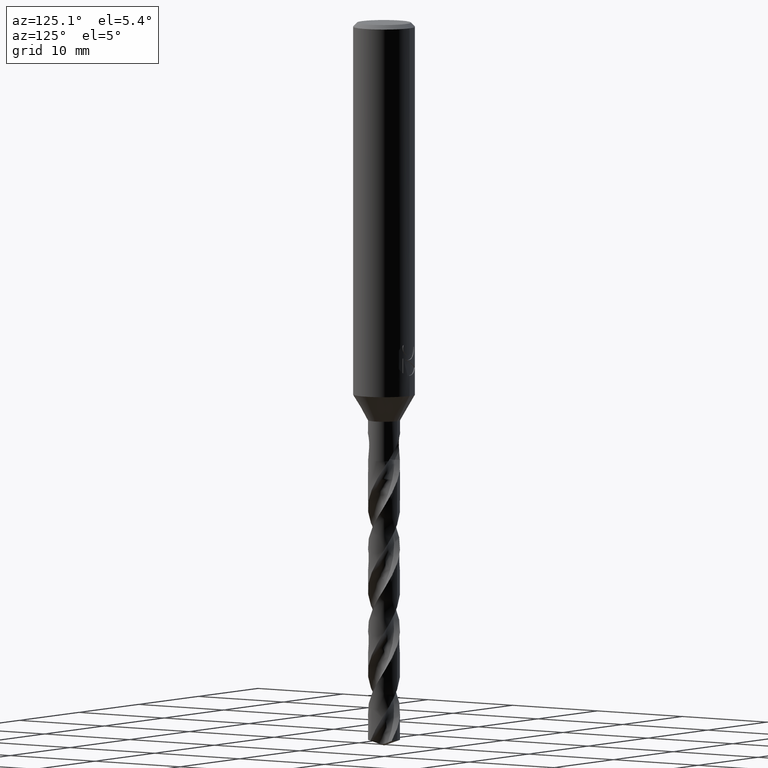
[diagram: clean part render]
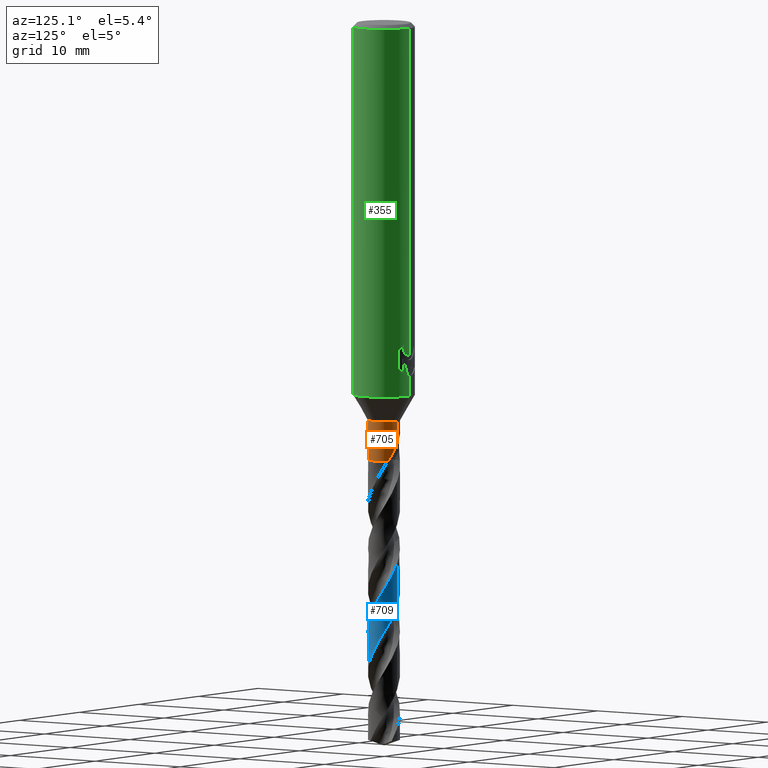
[diagram: same view with three faces highlighted in distinct colors, each labeled with its STEP entity id]
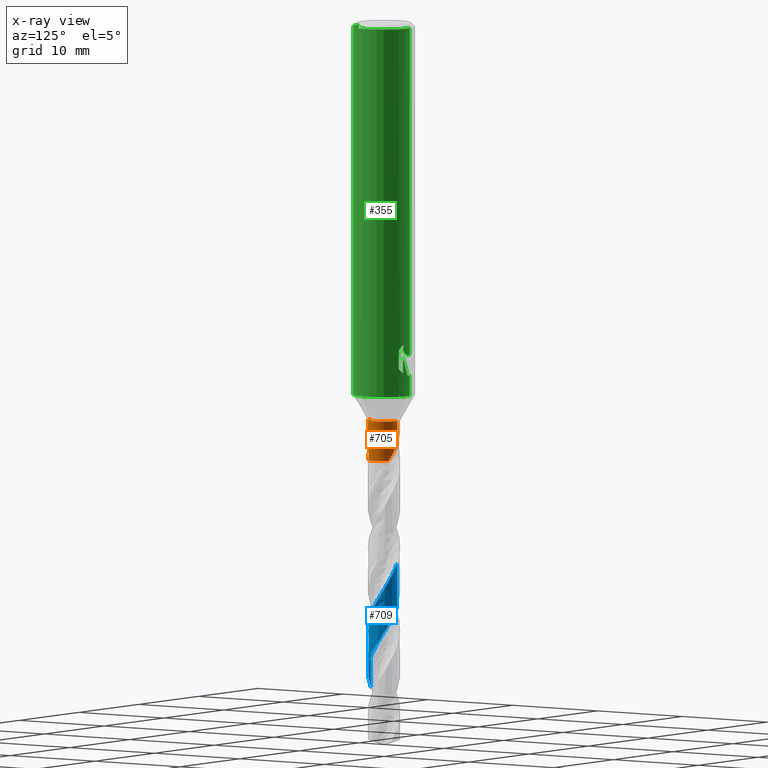
[diagram: x-ray of the same camera — body ghosted, the three highlighted faces saturated]
A machine part, auxiliary view with three faces highlighted in distinct colors.
The next image is the same camera in x-ray (body ghosted, the three faces saturated) — at least one of them is partly hidden behind the body in this view.
Their STEP definitions:

[orange] entity #705 — the highlighted cylindrical surface (edge-blend (fillet) strip) has radius 1.55 mm, axis along (-0, -0, 1).
#301=EDGE_CURVE('',#739,#415,#835,.T.);
#307=VERTEX_POINT('',#841);
#365=EDGE_CURVE('',#307,#557,#904,.T.);
#415=VERTEX_POINT('',#960);
#541=EDGE_CURVE('',#739,#737,#1101,.T.);
#557=VERTEX_POINT('',#1117);
#565=EDGE_CURVE('',#715,#557,#1126,.T.);
#601=EDGE_CURVE('',#307,#737,#1164,.T.);
#697=VERTEX_POINT('',#1265);
#705=ADVANCED_FACE('',(#1273),#1274,.T.);
#715=VERTEX_POINT('',#1285);
#737=VERTEX_POINT('',#1310);
#739=VERTEX_POINT('',#1312);
#743=EDGE_CURVE('',#715,#697,#1316,.T.);
#785=EDGE_CURVE('',#415,#697,#1363,.T.);
#835=B_SPLINE_CURVE_WITH_KNOTS('',3,(#1413,#1414,#1415,#1416,#1417,#1418,#1419,#1420,#1421,#1422,#1423,#1424,#1425,#1426,#1427,#1428,#1429,#1430,#1431,#1432,#1433,#1434,#1435,#1436,#1437,#1438,#1439,#1440),.UNSPECIFIED.,.F.,.F.,(4,2,2,2,2,2,2,2,2,2,2,2,2,4),(0.0,0.755780488256954,1.1701044414912,1.54592324361412,1.9828547802373,2.50743566739136,2.95984412649594,3.1657034619249,3.31620705410827,3.45865735959706,3.6394089208714,3.9038939114891,4.27986349188036,4.70695232471318),.UNSPECIFIED.);
#841=CARTESIAN_POINT('',(0.0,1.55,-38.5114736709749));
#904=LINE('',#2028,#2029);
#960=CARTESIAN_POINT('',(1.26114535303744,-0.901117305633441,-41.4998506428175));
#1101=LINE('',#4788,#4789);
#1117=CARTESIAN_POINT('',(-5.26895732177058E-013,1.55,-40.7009778396554));
#1126=B_SPLINE_CURVE_WITH_KNOTS('',3,(#5158,#5159,#5160,#5161,#5162,#5163,#5164,#5165,#5166,#5167,#5168,#5169,#5170,#5171,#5172,#5173,#5174,#5175,#5176,#5177,#5178,#5179,#5180,#5181,#5182,#5183,#5184,#5185),.UNSPECIFIED.,.F.,.F.,(4,2,2,2,2,2,2,2,2,2,2,2,2,4),(0.0,0.755780488256983,1.17010444149125,1.54592324361412,1.98285478023731,2.50743566739144,2.95984412649604,3.16570346192509,3.31620705410845,3.45865735959721,3.63940892087149,3.90389391148943,4.27986349188169,4.70695232471582),.UNSPECIFIED.);
#1164=CIRCLE('',#5553,1.55);
#1265=CARTESIAN_POINT('',(1.07868868501236,-1.11307264849439,-42.3436));
#1273=FACE_OUTER_BOUND('',#6288,.T.);
#1274=CYLINDRICAL_SURFACE('',#6289,1.55);
#1285=CARTESIAN_POINT('',(0.985311729893019,1.19652028605253,-42.3436));
#1310=CARTESIAN_POINT('',(1.89813984842468E-016,-1.55,-38.5114736709749));
#1312=CARTESIAN_POINT('',(5.25896531454895E-013,-1.55,-40.7009778396554));
#1316=CIRCLE('',#6569,1.55);
#1363=B_SPLINE_CURVE_WITH_KNOTS('',3,(#6925,#6926,#6927,#6928),.UNSPECIFIED.,.F.,.F.,(4,4),(0.0,0.885554567416322),.UNSPECIFIED.);
#1413=CARTESIAN_POINT('',(-0.985311729893016,-1.19652028605253,-42.3436));
#1414=CARTESIAN_POINT('',(-0.883252649228191,-1.28056400055812,-42.1291525111197));
#1415=CARTESIAN_POINT('',(-0.766104096844722,-1.35517257107608,-41.929036735671));
#1416=CARTESIAN_POINT('',(-0.561832988835168,-1.44676440459792,-41.5945113844101));
#1417=CARTESIAN_POINT('',(-0.488146593531627,-1.47317443796724,-41.4765005230867));
#1418=CARTESIAN_POINT('',(-0.345418613199697,-1.51266231691103,-41.2479268479021));
#1419=CARTESIAN_POINT('',(-0.277003062846323,-1.52661338413415,-41.1384116679325));
#1420=CARTESIAN_POINT('',(-0.128857888871309,-1.54672409504514,-40.9023060459179));
#1421=CARTESIAN_POINT('',(-0.0478776941986625,-1.55141430619805,-40.7738494516293));
#1422=CARTESIAN_POINT('',(0.131918930158996,-1.54748966560525,-40.4991731164357));
#1423=CARTESIAN_POINT('',(0.238547555875686,-1.53570114433479,-40.3428807724294));
#1424=CARTESIAN_POINT('',(0.44371774302198,-1.48832862150095,-40.0859642650665));
#1425=CARTESIAN_POINT('',(0.55683913699031,-1.45243165459246,-39.9610697283862));
#1426=CARTESIAN_POINT('',(0.728277221365245,-1.36954685263859,-39.8438121584911));
#1427=CARTESIAN_POINT('',(0.785180178968851,-1.338171457659,-39.8147608963502));
#1428=CARTESIAN_POINT('',(0.884895974675665,-1.27356862612868,-39.7924629383635));
#1429=CARTESIAN_POINT('',(0.925799053271746,-1.24414532800102,-39.7920645436018));
#1430=CARTESIAN_POINT('',(1.00198653596388,-1.18353872971195,-39.8116535248797));
#1431=CARTESIAN_POINT('',(1.03530846631061,-1.15426567753244,-39.8300064429562));
#1432=CARTESIAN_POINT('',(1.10312346783249,-1.09011201948715,-39.8874184381068));
#1433=CARTESIAN_POINT('',(1.13449827459044,-1.05686468727345,-39.9298053594251));
#1434=CARTESIAN_POINT('',(1.19876430287036,-0.984266917471625,-40.0458705274265));
#1435=CARTESIAN_POINT('',(1.22947965808404,-0.944734079855488,-40.1319579013388));
#1436=CARTESIAN_POINT('',(1.28722442571722,-0.86537432136662,-40.3727986658081));
#1437=CARTESIAN_POINT('',(1.30809070878163,-0.831586622689754,-40.5443155768602));
#1438=CARTESIAN_POINT('',(1.32137304521537,-0.810339962288642,-40.9541492879993));
#1439=CARTESIAN_POINT('',(1.31188369578221,-0.830107210972792,-41.211266840921));
#1440=CARTESIAN_POINT('',(1.26114535303744,-0.901117305633443,-41.4998506428175));
#2028=CARTESIAN_POINT('',(-1.89813984842468E-016,1.55,-40.4275368354874));
#2029=VECTOR('',#7372,1.0);
#4788=CARTESIAN_POINT('',(1.89813984842469E-016,-1.55,-40.4275368354874));
#4789=VECTOR('',#7607,1.0);
#5158=CARTESIAN_POINT('',(0.985311729893019,1.19652028605253,-42.3436));
#5159=CARTESIAN_POINT('',(0.883252649228191,1.28056400055813,-42.1291525111197));
#5160=CARTESIAN_POINT('',(0.766104096844707,1.35517257107609,-41.929036735671));
#5161=CARTESIAN_POINT('',(0.561832988835176,1.44676440459791,-41.5945113844102));
#5162=CARTESIAN_POINT('',(0.488146593531645,1.47317443796724,-41.4765005230867));
#5163=CARTESIAN_POINT('',(0.345418613199692,1.51266231691103,-41.2479268479021));
#5164=CARTESIAN_POINT('',(0.277003062846312,1.52661338413415,-41.1384116679325));
#5165=CARTESIAN_POINT('',(0.128857888871304,1.54672409504514,-40.9023060459179));
#5166=CARTESIAN_POINT('',(0.0478776941986622,1.55141430619805,-40.7738494516293));
#5167=CARTESIAN_POINT('',(-0.13191893015901,1.54748966560525,-40.4991731164357));
#5168=CARTESIAN_POINT('',(-0.238547555875695,1.53570114433479,-40.3428807724294));
#5169=CARTESIAN_POINT('',(-0.44371774302197,1.48832862150095,-40.0859642650665));
#5170=CARTESIAN_POINT('',(-0.556839136990308,1.45243165459246,-39.9610697283862));
#5171=CARTESIAN_POINT('',(-0.728277221365269,1.36954685263858,-39.843812158491));
#5172=CARTESIAN_POINT('',(-0.78518017896886,1.338171457659,-39.8147608963502));
#5173=CARTESIAN_POINT('',(-0.884895974675637,1.2735686261287,-39.7924629383635));
#5174=CARTESIAN_POINT('',(-0.925799053271734,1.24414532800103,-39.7920645436018));
#5175=CARTESIAN_POINT('',(-1.00198653596388,1.18353872971195,-39.8116535248797));
#5176=CARTESIAN_POINT('',(-1.03530846631061,1.15426567753244,-39.8300064429562));
#5177=CARTESIAN_POINT('',(-1.10312346783249,1.09011201948715,-39.8874184381068));
#5178=CARTESIAN_POINT('',(-1.13449827459043,1.05686468727345,-39.9298053594251));
#5179=CARTESIAN_POINT('',(-1.1987643028704,0.984266917471574,-40.0458705274266));
#5180=CARTESIAN_POINT('',(-1.22947965808406,0.944734079855448,-40.1319579013389));
#5181=CARTESIAN_POINT('',(-1.28722442571724,0.865374321366599,-40.3727986658082));
#5182=CARTESIAN_POINT('',(-1.30809070878163,0.831586622689752,-40.5443155768603));
#5183=CARTESIAN_POINT('',(-1.32137304521537,0.810339962288645,-40.9541492879993));
#5184=CARTESIAN_POINT('',(-1.31188369578221,0.83010721097279,-41.211266840921));
#5185=CARTESIAN_POINT('',(-1.26114535303744,0.901117305633444,-41.4998506428175));
#5553=AXIS2_PLACEMENT_3D('',#7646,#7647,#7648);
#6288=EDGE_LOOP('',(#7719,#7720,#7721,#7722,#7723,#7724,#7725));
#6289=AXIS2_PLACEMENT_3D('',#7726,#7727,#7728);
#6569=AXIS2_PLACEMENT_3D('',#7779,#7780,#7781);
#6925=CARTESIAN_POINT('',(1.26114535309006,-0.901117305559802,-41.4998506428464));
#6926=CARTESIAN_POINT('',(1.21146976455955,-0.970640038339134,-41.7823980275944));
#6927=CARTESIAN_POINT('',(1.15166159190462,-1.04235395004859,-42.0665929650378));
#6928=CARTESIAN_POINT('',(1.07868868501236,-1.11307264849439,-42.3436));
#7372=DIRECTION('',(0.0,0.0,-1.0));
#7607=DIRECTION('',(-0.0,-0.0,1.0));
#7646=CARTESIAN_POINT('',(0.0,0.0,-38.5114736709749));
#7647=DIRECTION('',(0.0,0.0,-1.0));
#7648=DIRECTION('',(0.0,1.0,0.0));
#7719=ORIENTED_EDGE('',*,*,#365,.F.);
#7720=ORIENTED_EDGE('',*,*,#601,.T.);
#7721=ORIENTED_EDGE('',*,*,#541,.F.);
#7722=ORIENTED_EDGE('',*,*,#301,.T.);
#7723=ORIENTED_EDGE('',*,*,#785,.T.);
#7724=ORIENTED_EDGE('',*,*,#743,.F.);
#7725=ORIENTED_EDGE('',*,*,#565,.T.);
#7726=CARTESIAN_POINT('',(0.0,0.0,-40.4275368354874));
#7727=DIRECTION('',(-0.0,-0.0,1.0));
#7728=DIRECTION('',(0.0,1.0,0.0));
#7779=CARTESIAN_POINT('',(0.0,0.0,-42.3436));
#7780=DIRECTION('',(0.0,0.0,-1.0));
#7781=DIRECTION('',(0.0,1.0,0.0));

[blue] entity #709 — the highlighted conical surface has half-angle 0 deg.
#313=EDGE_CURVE('',#513,#759,#847,.T.);
#443=VERTEX_POINT('',#992);
#513=VERTEX_POINT('',#1068);
#527=EDGE_CURVE('',#443,#759,#1085,.T.);
#569=EDGE_CURVE('',#513,#695,#1130,.T.);
#695=VERTEX_POINT('',#1263);
#709=ADVANCED_FACE('',(#1278),#1279,.T.);
#759=VERTEX_POINT('',#1333);
#799=EDGE_CURVE('',#443,#695,#1378,.T.);
#847=B_SPLINE_CURVE_WITH_KNOTS('',3,(#1453,#1454,#1455,#1456,#1457,#1458,#1459,#1460,#1461,#1462,#1463,#1464,#1465,#1466,#1467,#1468,#1469,#1470,#1471,#1472,#1473,#1474,#1475,#1476,#1477,#1478,#1479,#1480,#1481,#1482,#1483,#1484,#1485,#1486,#1487,#1488,#1489,#1490,#1491,#1492,#1493,#1494,#1495,#1496,#1497,#1498,#1499,#1500,#1501,#1502,#1503,#1504,#1505,#1506,#1507,#1508,#1509,#1510,#1511,#1512,#1513,#1514,#1515,#1516,#1517,#1518,#1519,#1520,#1521,#1522,#1523,#1524,#1525,#1526,#1527,#1528,#1529,#1530,#1531,#1532,#1533,#1534,#1535,#1536,#1537,#1538,#1539,#1540,#1541,#1542,#1543,#1544,#1545,#1546,#1547,#1548,#1549,#1550,#1551,#1552,#1553,#1554,#1555,#1556,#1557,#1558,#1559,#1560,#1561,#1562,#1563,#1564,#1565,#1566,#1567,#1568,#1569,#1570,#1571,#1572,#1573,#1574,#1575,#1576,#1577,#1578,#1579,#1580,#1581,#1582,#1583,#1584,#1585,#1586,#1587,#1588,#1589,#1590,#1591,#1592,#1593,#1594,#1595,#1596,#1597,#1598,#1599,#1600),.UNSPECIFIED.,.F.,.F.,(4,2,2,2,2,2,2,2,2,2,2,2,2,2,2,2,2,2,2,2,2,2,2,2,2,2,2,2,2,2,2,2,2,2,2,2,2,2,2,2,2,2,2,2,2,2,2,2,2,2,2,2,2,2,2,2,2,2,2,2,2,2,2,2,2,2,2,2,2,2,2,2,2,4),(0.0,0.689982704029782,1.19141596346426,1.48040212199566,2.35499433934083,2.40039659479752,2.98383758733668,3.26189501626909,3.47997829713831,4.23568707331895,4.72080947262368,5.22490258553939,5.72164243781062,6.22526935810047,6.72328245450062,7.22659182672248,7.72566333066517,8.22871615262716,8.77587984468382,9.32785008568,9.79503881269832,10.3467636899388,10.8113492184201,11.3627951966415,11.8251085666904,12.3282467574603,12.8245306327243,13.3272425838776,13.8715351942841,14.4230116812296,14.6465482003664,15.3964260512698,15.8894281101989,16.393256381836,16.889697261994,17.3930602228106,17.8907360389076,18.3937667779698,18.8925292696838,19.3953054189196,19.8950450613813,20.3975944133663,20.6500767426049,20.6861663677386,21.3456765310315,21.8471458796584,22.3403375393345,22.8905960934233,23.4375570002573,23.9826689021,24.4841497334591,24.9797665984341,25.4808521135867,25.9776540667945,26.4785505233322,26.9763187493002,27.4768587739383,27.7282612239456,27.7564477116872,28.2911801740898,28.7049779451951,28.7763160959945,29.41053514644,29.9393887953351,30.1277972292892,30.8824176104901,31.2001851337791,31.3087466414708,31.390983489319,31.4566218914801,31.5308568279629,31.6568445479488,31.8422372988144,32.4207539520595),.UNSPECIFIED.);
#992=CARTESIAN_POINT('',(1.05265257830897E-013,1.54993672636239,-52.2935964953968));
#1068=CARTESIAN_POINT('',(1.06420205203816E-014,-1.5499817393557,-64.4886274361186));
#1085=LINE('',#4741,#4742);
#1130=LINE('',#5191,#5192);
#1263=CARTESIAN_POINT('',(-5.4528071976261E-014,-1.54996620545167,-60.2801439237304));
#1278=FACE_OUTER_BOUND('',#6297,.T.);
#1279=CONICAL_SURFACE('',#6298,1.54995,3.69109299739382E-006);
#1333=CARTESIAN_POINT('',(-2.50450200210243E-013,1.54995226180326,-56.5024963750045));
#1378=B_SPLINE_CURVE_WITH_KNOTS('',3,(#7106,#7107,#7108,#7109,#7110,#7111,#7112,#7113,#7114,#7115,#7116,#7117,#7118,#7119,#7120,#7121,#7122,#7123,#7124,#7125,#7126,#7127,#7128,#7129,#7130,#7131,#7132,#7133,#7134,#7135,#7136,#7137,#7138,#7139,#7140,#7141,#7142,#7143,#7144,#7145,#7146,#7147,#7148,#7149,#7150,#7151,#7152,#7153,#7154,#7155,#7156,#7157,#7158,#7159,#7160,#7161,#7162,#7163,#7164,#7165,#7166,#7167,#7168,#7169,#7170,#7171,#7172,#7173,#7174,#7175,#7176,#7177,#7178,#7179,#7180,#7181,#7182,#7183,#7184,#7185,#7186,#7187,#7188,#7189,#7190,#7191,#7192,#7193,#7194,#7195,#7196,#7197,#7198,#7199,#7200,#7201,#7202,#7203,#7204,#7205,#7206,#7207,#7208,#7209,#7210,#7211,#7212,#7213,#7214,#7215,#7216,#7217,#7218,#7219,#7220,#7221,#7222,#7223,#7224,#7225,#7226,#7227,#7228,#7229,#7230,#7231,#7232,#7233,#7234,#7235,#7236,#7237,#7238,#7239,#7240,#7241,#7242,#7243,#7244,#7245,#7246,#7247,#7248,#7249,#7250,#7251,#7252,#7253,#7254,#7255,#7256,#7257,#7258,#7259),.UNSPECIFIED.,.F.,.F.,(4,2,2,2,2,2,2,2,2,2,2,2,2,2,2,2,2,2,2,2,2,2,2,2,2,2,2,2,2,2,2,2,2,2,2,2,2,2,2,2,2,2,2,2,2,2,2,2,2,2,2,2,2,2,2,2,2,2,2,2,2,2,2,2,2,2,2,2,2,2,2,2,2,2,2,2,4),(0.0,0.0779696974496812,0.122038965539765,0.12904240259284,0.132237430937246,0.133724223648231,0.332847576070341,0.377997243575297,0.402400235565218,0.422717719513313,0.446601085107852,0.489375145814961,0.548745044786503,0.806974315057476,0.972451752559503,1.27249206141012,1.75107493821752,2.22313563786119,2.73060510872017,3.2944912856193,3.82752825999497,4.10716349050559,4.60070448541143,5.13970263168274,5.77938826748005,6.07996549754061,6.58119588407956,7.11937089254922,7.7649905265646,8.05666013642772,8.55757678828362,9.0956781531271,9.74535613027542,10.0329997980923,10.5380522217955,11.0753046957247,11.7325744638851,12.0119440754219,12.5224231350413,13.0585581691564,13.7387893357914,13.9982256924863,14.581392102435,14.9672320424163,15.4661642499065,16.0041916464561,16.648293047467,16.9412711091872,17.4431675747124,17.9806421811389,18.6304683557595,18.9167173540183,19.4191137958919,19.9563243871616,20.6117801208906,20.8926845940645,21.4023102028175,21.93810266248,22.6113265412392,22.8754707656464,23.4509037419192,23.8532565878319,24.3648006536634,24.9000978263827,25.5838751367808,25.8394906358766,26.422689752245,26.8063094937994,27.3095688165786,27.535878672823,27.8038712488481,28.374659746921,29.0081803563365,29.4895060600969,29.8493430505595,30.3942746860112,30.9435141410066),.UNSPECIFIED.);
#1453=CARTESIAN_POINT('',(-1.4424725301533,0.567250385414726,-69.4358461368874));
#1454=CARTESIAN_POINT('',(-1.48641115904966,0.455515974747743,-69.2396774178008));
#1455=CARTESIAN_POINT('',(-1.51709861554357,0.339420869436679,-69.0418856813999));
#1456=CARTESIAN_POINT('',(-1.5465462182387,0.13504972164403,-68.7031223876414));
#1457=CARTESIAN_POINT('',(-1.55168421414591,0.0481500749819914,-68.5613539276717));
#1458=CARTESIAN_POINT('',(-1.54826069230007,-0.0887959602561719,-68.3366486233562));
#1459=CARTESIAN_POINT('',(-1.54458608544567,-0.138711875127806,-68.2542783182283));
#1460=CARTESIAN_POINT('',(-1.52011800574112,-0.338567788657443,-67.9236070453675));
#1461=CARTESIAN_POINT('',(-1.47983691505508,-0.485139034927001,-67.6787155908455));
#1462=CARTESIAN_POINT('',(-1.41595935290727,-0.630553288131737,-67.4171822179816));
#1463=CARTESIAN_POINT('',(-1.41275693174616,-0.637695931302789,-67.404282530903));
#1464=CARTESIAN_POINT('',(-1.36757093920132,-0.736464112147955,-67.2254353489133));
#1465=CARTESIAN_POINT('',(-1.31673265482913,-0.8239710599285,-67.0606988297527));
#1466=CARTESIAN_POINT('',(-1.22938447908416,-0.945203536572583,-66.8161541261978));
#1467=CARTESIAN_POINT('',(-1.1994152169272,-0.982948051421712,-66.7373242095605));
#1468=CARTESIAN_POINT('',(-1.14296822118549,-1.04762348728887,-66.5963625173324));
#1469=CARTESIAN_POINT('',(-1.11716670066175,-1.07509222588803,-66.534269718531));
#1470=CARTESIAN_POINT('',(-0.997668183016139,-1.19337676628287,-66.2578072577968));
#1471=CARTESIAN_POINT('',(-0.893681378020753,-1.27312973672548,-66.0457775053841));
#1472=CARTESIAN_POINT('',(-0.708396893272785,-1.38118180196453,-65.6938493340977));
#1473=CARTESIAN_POINT('',(-0.632621661432526,-1.41749725871418,-65.5557004231854));
#1474=CARTESIAN_POINT('',(-0.472692672955677,-1.47872562538826,-65.2750918034688));
#1475=CARTESIAN_POINT('',(-0.388731203859123,-1.50297802015651,-65.1328294133067));
#1476=CARTESIAN_POINT('',(-0.218944949236066,-1.53684563704154,-64.8488828234267));
#1477=CARTESIAN_POINT('',(-0.133447816827458,-1.54661966217532,-64.7073806617233));
#1478=CARTESIAN_POINT('',(0.0396492375913649,-1.55192521150282,-64.4235524160557));
#1479=CARTESIAN_POINT('',(0.126841622624164,-1.54723857890683,-64.2814096257872));
#1480=CARTESIAN_POINT('',(0.298521662924612,-1.52340054032276,-63.9972153578946));
#1481=CARTESIAN_POINT('',(0.382692808537588,-1.50446456523273,-63.8553476121302));
#1482=CARTESIAN_POINT('',(0.54803762604077,-1.45247300287828,-63.5712384514223));
#1483=CARTESIAN_POINT('',(0.628785484135943,-1.41938291430537,-63.4291824112936));
#1484=CARTESIAN_POINT('',(0.783207407301191,-1.34032634286847,-63.1447971848673));
#1485=CARTESIAN_POINT('',(0.85660391574359,-1.29464873548292,-63.0026398152094));
#1486=CARTESIAN_POINT('',(0.995685670739074,-1.19105495028005,-62.7183253623279));
#1487=CARTESIAN_POINT('',(1.06099704290075,-1.1332637606793,-62.5763551953764));
#1488=CARTESIAN_POINT('',(1.18650549203705,-1.00179358430636,-62.2784504664965));
#1489=CARTESIAN_POINT('',(1.24544238690162,-0.927501690196169,-62.1226159582484));
#1490=CARTESIAN_POINT('',(1.3495571065526,-0.768268478764465,-61.8108378589337));
#1491=CARTESIAN_POINT('',(1.39430793460351,-0.683683122307267,-61.6552233082732));
#1492=CARTESIAN_POINT('',(1.46201098042581,-0.521013670906036,-61.3660463675121));
#1493=CARTESIAN_POINT('',(1.48719239773286,-0.444085316244124,-61.2329432243013));
#1494=CARTESIAN_POINT('',(1.52879878142534,-0.272594183039436,-60.9437623937356));
#1495=CARTESIAN_POINT('',(1.54267942296225,-0.17790186351963,-60.7881313530856));
#1496=CARTESIAN_POINT('',(1.55204711474581,-0.00235476096448181,-60.4995998768743));
#1497=CARTESIAN_POINT('',(1.55008668847889,0.0781646166123536,-60.367165571486));
#1498=CARTESIAN_POINT('',(1.53210763482416,0.253321541815601,-60.0786334610786));
#1499=CARTESIAN_POINT('',(1.51358339785661,0.347225776386018,-59.9229889162658));
#1500=CARTESIAN_POINT('',(1.4639135725306,0.515506970789266,-59.6350079383332));
#1501=CARTESIAN_POINT('',(1.43533769371312,0.59043939128026,-59.5031409043021));
#1502=CARTESIAN_POINT('',(1.36373654660191,0.741766532382455,-59.2288041059724));
#1503=CARTESIAN_POINT('',(1.31984001367548,0.817316126696535,-59.0865680573615));
#1504=CARTESIAN_POINT('',(1.22053324042567,0.959204338996524,-58.802545687176));
#1505=CARTESIAN_POINT('',(1.16546578156665,1.02541274032474,-58.6609375798567));
#1506=CARTESIAN_POINT('',(1.04401027798748,1.14891868129672,-58.3770255648003));
#1507=CARTESIAN_POINT('',(0.977771713850178,1.20578900915214,-58.2349052080693));
#1508=CARTESIAN_POINT('',(0.830617020111069,1.3120002329921,-57.9373518471011));
#1509=CARTESIAN_POINT('',(0.749258613372756,1.36010723601611,-57.782046525728));
#1510=CARTESIAN_POINT('',(0.577510841367853,1.44152512006256,-57.4706390796743));
#1511=CARTESIAN_POINT('',(0.487532516918443,1.47437900455634,-57.3148672719494));
#1512=CARTESIAN_POINT('',(0.357758990080375,1.50859727661103,-57.0945101442099));
#1513=CARTESIAN_POINT('',(0.320030888303845,1.51704638018555,-57.0308124051404));
#1514=CARTESIAN_POINT('',(0.154667843034981,1.54764867673821,-56.7542784015866));
#1515=CARTESIAN_POINT('',(0.0247717440825758,1.55517368071858,-56.5437204108093));
#1516=CARTESIAN_POINT('',(-0.189735038962858,1.54065633253912,-56.1910019046652));
#1517=CARTESIAN_POINT('',(-0.274220622925447,1.5278879830647,-56.050526462471));
#1518=CARTESIAN_POINT('',(-0.442228999676032,1.48808356020416,-55.7676016074717));
#1519=CARTESIAN_POINT('',(-0.525266971764948,1.46083560957624,-55.6253349458007));
#1520=CARTESIAN_POINT('',(-0.684631888413268,1.39319799124508,-55.341390517833));
#1521=CARTESIAN_POINT('',(-0.760779581296318,1.35312433468921,-55.1998952624053));
#1522=CARTESIAN_POINT('',(-0.906797797611814,1.26002110055162,-54.9160686986766));
#1523=CARTESIAN_POINT('',(-0.976207393853081,1.20704035217727,-54.7739212407378));
#1524=CARTESIAN_POINT('',(-1.10463385152424,1.09065917556154,-54.4897376601554));
#1525=CARTESIAN_POINT('',(-1.16351306004184,1.02761566389877,-54.3478854722901));
#1526=CARTESIAN_POINT('',(-1.27085229380364,0.891542778256726,-54.063790954666));
#1527=CARTESIAN_POINT('',(-1.31893932481086,0.818724030190276,-53.9217335085889));
#1528=CARTESIAN_POINT('',(-1.40201347336871,0.666435842600529,-53.6373541672172));
#1529=CARTESIAN_POINT('',(-1.43693516074034,0.587361173923581,-53.4952049164659));
#1530=CARTESIAN_POINT('',(-1.4935179145297,0.423435130154389,-53.2108958086652));
#1531=CARTESIAN_POINT('',(-1.51493915261389,0.338898184445561,-53.0689232726389));
#1532=CARTESIAN_POINT('',(-1.54327548392512,0.167627145536146,-52.7843877718559));
#1533=CARTESIAN_POINT('',(-1.55021914422479,0.081304858389883,-52.6419769250638));
#1534=CARTESIAN_POINT('',(-1.54963679908797,-0.0921779843433689,-52.3575041865425));
#1535=CARTESIAN_POINT('',(-1.54202330635649,-0.178992422822904,-52.2156227780088));
#1536=CARTESIAN_POINT('',(-1.51969439487691,-0.30779944199623,-52.0013863383937));
#1537=CARTESIAN_POINT('',(-1.51042284129013,-0.350455668080554,-51.9297975554751));
#1538=CARTESIAN_POINT('',(-1.49781481815372,-0.398607923839085,-51.8478008288968));
#1539=CARTESIAN_POINT('',(-1.49619733859175,-0.404637397221878,-51.8375194594095));
#1540=CARTESIAN_POINT('',(-1.46419647071303,-0.521091618175673,-51.6387031536186));
#1541=CARTESIAN_POINT('',(-1.42167124550695,-0.627971046189528,-51.4519248960621));
#1542=CARTESIAN_POINT('',(-1.3264873621075,-0.806445816233474,-51.1206828350409));
#1543=CARTESIAN_POINT('',(-1.27898377429824,-0.879821365674355,-50.9770837483695));
#1544=CARTESIAN_POINT('',(-1.17316278337813,-1.01652459558649,-50.6933029852591));
#1545=CARTESIAN_POINT('',(-1.11511998701345,-1.0798907947577,-50.5533292946546));
#1546=CARTESIAN_POINT('',(-0.981715505547778,-1.20320109931882,-50.2558733536067));
#1547=CARTESIAN_POINT('',(-0.905574779176955,-1.26148961024446,-50.0984221662282));
#1548=CARTESIAN_POINT('',(-0.744133667934361,-1.36292845182441,-49.7856010991828));
#1549=CARTESIAN_POINT('',(-0.659156486449619,-1.40599830196046,-49.6306457162062));
#1550=CARTESIAN_POINT('',(-0.482608844087742,-1.47592092970193,-49.3194317102005));
#1551=CARTESIAN_POINT('',(-0.391540572470813,-1.50264690481915,-49.1634622165747));
#1552=CARTESIAN_POINT('',(-0.212969555875766,-1.53769689121134,-48.8652092410685));
#1553=CARTESIAN_POINT('',(-0.12616557292225,-1.54723665199652,-48.7230475925944));
#1554=CARTESIAN_POINT('',(0.0470704971407672,-1.5516003093266,-48.4388883983644));
#1555=CARTESIAN_POINT('',(0.133160396877033,-1.54659342161853,-48.2970740162087));
#1556=CARTESIAN_POINT('',(0.3047152429545,-1.52216721421733,-48.0130215770498));
#1557=CARTESIAN_POINT('',(0.389763125996795,-1.50263934304714,-47.8709668598399));
#1558=CARTESIAN_POINT('',(0.55496063625065,-1.44973327412289,-47.5866003151105));
#1559=CARTESIAN_POINT('',(0.634791388616709,-1.41659628453407,-47.4444647290536));
#1560=CARTESIAN_POINT('',(0.788855252177308,-1.33698642407972,-47.1601497748598));
#1561=CARTESIAN_POINT('',(0.862696180456522,-1.29057341424542,-47.0181577738402));
#1562=CARTESIAN_POINT('',(1.00137643737971,-1.18615851302777,-46.7336150134114));
#1563=CARTESIAN_POINT('',(1.06595799496955,-1.12847424700718,-46.5912129380468));
#1564=CARTESIAN_POINT('',(1.18523464196844,-1.00250671821644,-46.3067709660012));
#1565=CARTESIAN_POINT('',(1.23962148931904,-0.934420805053898,-46.1649176897432));
#1566=CARTESIAN_POINT('',(1.31232358007773,-0.825801280224272,-45.9507290123372));
#1567=CARTESIAN_POINT('',(1.33503680241687,-0.78854432011537,-45.8791696102605));
#1568=CARTESIAN_POINT('',(1.35847705117179,-0.746185949818073,-45.7994142753307));
#1569=CARTESIAN_POINT('',(1.36082720127401,-0.741891453012806,-45.7913508154626));
#1570=CARTESIAN_POINT('',(1.40752319494776,-0.655587397044387,-45.6297752719642));
#1571=CARTESIAN_POINT('',(1.44448207528547,-0.569612690161456,-45.4771882050332));
#1572=CARTESIAN_POINT('',(1.49596802080417,-0.411763173840052,-45.205423425131));
#1573=CARTESIAN_POINT('',(1.51353318753584,-0.341536425072834,-45.0872199957775));
#1574=CARTESIAN_POINT('',(1.52829819525576,-0.25822323074109,-44.9480342092584));
#1575=CARTESIAN_POINT('',(1.53031938234489,-0.245961809519199,-44.9275696653322));
#1576=CARTESIAN_POINT('',(1.54888420727364,-0.124216274603803,-44.7250207892535));
#1577=CARTESIAN_POINT('',(1.55381903720325,-0.0132006425116506,-44.544717252698));
#1578=CARTESIAN_POINT('',(1.5410113653943,0.189886134768757,-44.211287163785));
#1579=CARTESIAN_POINT('',(1.52693323633523,0.281380162970041,-44.0585248783551));
#1580=CARTESIAN_POINT('',(1.49703108356355,0.402719260129836,-43.8532745245386));
#1581=CARTESIAN_POINT('',(1.48814564723002,0.434417105619051,-43.7994208300544));
#1582=CARTESIAN_POINT('',(1.43849434809593,0.591952364034899,-43.530097578209));
#1583=CARTESIAN_POINT('',(1.38370811089772,0.709634998484307,-43.3240606096906));
#1584=CARTESIAN_POINT('',(1.28884291321733,0.862510270302596,-43.0224870260183));
#1585=CARTESIAN_POINT('',(1.25905690496368,0.9053023442562,-42.9330167863422));
#1586=CARTESIAN_POINT('',(1.21731581093134,0.959500403564581,-42.8111783489996));
#1587=CARTESIAN_POINT('',(1.20966365851263,0.969009331768971,-42.7889577789545));
#1588=CARTESIAN_POINT('',(1.20039887663265,0.980447649217019,-42.7626042367249));
#1589=CARTESIAN_POINT('',(1.19631345472304,0.985429667612471,-42.7513051365162));
#1590=CARTESIAN_POINT('',(1.18879244579848,0.994481902384914,-42.7310862800866));
#1591=CARTESIAN_POINT('',(1.18539352733176,0.998531503557936,-42.7221503563815));
#1592=CARTESIAN_POINT('',(1.17801664607164,1.00722764810114,-42.7031863395299));
#1593=CARTESIAN_POINT('',(1.17402273336892,1.01188104326384,-42.6931725584774));
#1594=CARTESIAN_POINT('',(1.16302971353124,1.0245324833532,-42.6662939261722));
#1595=CARTESIAN_POINT('',(1.1558829772165,1.03259341899926,-42.6495351452622));
#1596=CARTESIAN_POINT('',(1.13761848517822,1.0527485363874,-42.6084647136145));
#1597=CARTESIAN_POINT('',(1.12623864999762,1.06492889448057,-42.5843657294748));
#1598=CARTESIAN_POINT('',(1.07710816610686,1.11574872055394,-42.4863484681903));
#1599=CARTESIAN_POINT('',(1.03514150895204,1.15519241841182,-42.4162141471747));
#1600=CARTESIAN_POINT('',(0.987655339734778,1.1944567790848,-42.3486));
#4741=CARTESIAN_POINT('',(-1.8981603755793E-016,1.54995,-55.8897230684437));
#4742=VECTOR('',#7589,1.0);
#5191=CARTESIAN_POINT('',(1.89799686063468E-016,-1.54995,-55.8897230684437));
#5192=VECTOR('',#7623,1.0);
#6297=EDGE_LOOP('',(#7730,#7731,#7732,#7733));
#6298=AXIS2_PLACEMENT_3D('',#7734,#7735,#7736);
#7106=CARTESIAN_POINT('',(1.0772991726614,-1.11427849292325,-42.3486));
#7107=CARTESIAN_POINT('',(1.06805434281839,-1.12321663254799,-42.3711857840033));
#7108=CARTESIAN_POINT('',(1.05866367392223,-1.1320735908005,-42.3938068480333));
#7109=CARTESIAN_POINT('',(1.04369461673197,-1.14583875962498,-42.4291793322578));
#7110=CARTESIAN_POINT('',(1.0382415106162,-1.15078252424184,-42.4419287100289));
#7111=CARTESIAN_POINT('',(1.03184918367909,-1.15649468139336,-42.4567000122994));
#7112=CARTESIAN_POINT('',(1.03097121406943,-1.15727743794055,-42.4587250696585));
#7113=CARTESIAN_POINT('',(1.02969055493881,-1.15841659620361,-42.4616734293289));
#7114=CARTESIAN_POINT('',(1.02928904383402,-1.1587733706113,-42.4625970101839));
#7115=CARTESIAN_POINT('',(1.02870024281234,-1.15929601912301,-42.4639502494894));
#7116=CARTESIAN_POINT('',(1.02851319337835,-1.15946197243137,-42.4643799736218));
#7117=CARTESIAN_POINT('',(1.00326604430381,-1.18185073471962,-42.5223592265141));
#7118=CARTESIAN_POINT('',(0.977714926258482,-1.20310796863879,-42.5779090358347));
#7119=CARTESIAN_POINT('',(0.944109023174289,-1.229192199571,-42.647275214138));
#7120=CARTESIAN_POINT('',(0.937844865330549,-1.23397864183696,-42.6600631293975));
#7121=CARTESIAN_POINT('',(0.928099699323011,-1.24130701523084,-42.6797605798901));
#7122=CARTESIAN_POINT('',(0.924665473950754,-1.24386739874287,-42.6866651109082));
#7123=CARTESIAN_POINT('',(0.918342262365569,-1.24854088046715,-42.6993153020632));
#7124=CARTESIAN_POINT('',(0.915459521910674,-1.25065615659699,-42.7050589118544));
#7125=CARTESIAN_POINT('',(0.909165291876936,-1.25524119808759,-42.7175520515719));
#7126=CARTESIAN_POINT('',(0.905751408938621,-1.25770684988532,-42.7242980096606));
#7127=CARTESIAN_POINT('',(0.896185915192265,-1.26455619956228,-42.7431242261834));
#7128=CARTESIAN_POINT('',(0.890011355424332,-1.26890964093865,-42.7551900216691));
#7129=CARTESIAN_POINT('',(0.875178808896259,-1.27920570704151,-42.7840138961675));
#7130=CARTESIAN_POINT('',(0.866583016412321,-1.28504635791613,-42.8006158796774));
#7131=CARTESIAN_POINT('',(0.818794057232956,-1.31679485373205,-42.8927190992279));
#7132=CARTESIAN_POINT('',(0.779047068807523,-1.34067113579191,-42.9682011628555));
#7133=CARTESIAN_POINT('',(0.71268706496421,-1.37664256638719,-43.0918230094378));
#7134=CARTESIAN_POINT('',(0.686407971312744,-1.3899308391385,-43.140192674455));
#7135=CARTESIAN_POINT('',(0.611562592052976,-1.42514352872222,-43.2761708827507));
#7136=CARTESIAN_POINT('',(0.562177869799238,-1.4453379248272,-43.3638629921493));
#7137=CARTESIAN_POINT('',(0.431550119404043,-1.49104142305804,-43.5912656413012));
#7138=CARTESIAN_POINT('',(0.349027338769401,-1.51249856597561,-43.7303137734206));
#7139=CARTESIAN_POINT('',(0.182200202413639,-1.54145436416097,-44.007598864349));
#7140=CARTESIAN_POINT('',(0.0984258644716235,-1.54905102727313,-44.1451969669783));
#7141=CARTESIAN_POINT('',(-0.0756214012580646,-1.55068582935275,-44.4311310209534));
#7142=CARTESIAN_POINT('',(-0.165759887946317,-1.5436626873161,-44.5790420254153));
#7143=CARTESIAN_POINT('',(-0.353817744984436,-1.51231659576926,-44.8916222579188));
#7144=CARTESIAN_POINT('',(-0.450940738744453,-1.48624839632365,-45.0555781768321));
#7145=CARTESIAN_POINT('',(-0.633607536630316,-1.41765873612915,-45.3756886938392));
#7146=CARTESIAN_POINT('',(-0.719150447497093,-1.37624442522052,-45.5308984446134));
#7147=CARTESIAN_POINT('',(-0.84300691243965,-1.30155497236664,-45.7680090785639));
#7148=CARTESIAN_POINT('',(-0.884344899411547,-1.27382788640517,-45.8495230819472));
#7149=CARTESIAN_POINT('',(-0.994726419489539,-1.19182899287599,-46.0751882365581));
#7150=CARTESIAN_POINT('',(-1.06063415164488,-1.13357951939917,-46.2190880263587));
#7151=CARTESIAN_POINT('',(-1.18748439537653,-1.00065868965821,-46.5204078482914));
#7152=CARTESIAN_POINT('',(-1.247101585448,-0.925293876059466,-46.6771379014782));
#7153=CARTESIAN_POINT('',(-1.36139341372939,-0.749531736536627,-47.021176846976));
#7154=CARTESIAN_POINT('',(-1.41275499195536,-0.647561562983755,-47.2074091911334));
#7155=CARTESIAN_POINT('',(-1.47116332972711,-0.490703815587303,-47.4817866833766));
#7156=CARTESIAN_POINT('',(-1.48721889613225,-0.439646592737359,-47.5693895371171));
#7157=CARTESIAN_POINT('',(-1.52291675431144,-0.301543104099285,-47.8034412174762));
#7158=CARTESIAN_POINT('',(-1.53774612300309,-0.213423540769082,-47.949599376098));
#7159=CARTESIAN_POINT('',(-1.55260757624938,-0.0290239853198893,-48.2529737319572));
#7160=CARTESIAN_POINT('',(-1.55143339125823,0.0669333796922114,-48.4095088131375));
#7161=CARTESIAN_POINT('',(-1.52940280527097,0.276372970478852,-48.7551061120273));
#7162=CARTESIAN_POINT('',(-1.50472237381771,0.388960241779718,-48.9430790450282));
#7163=CARTESIAN_POINT('',(-1.45112185493531,0.547001732935388,-49.2166348671482));
#7164=CARTESIAN_POINT('',(-1.43198782362026,0.595293115113975,-49.301662111986));
#7165=CARTESIAN_POINT('',(-1.37352541662374,0.723632765389299,-49.5330632175297));
#7166=CARTESIAN_POINT('',(-1.32963954470365,0.801426219260417,-49.6791570351894));
#7167=CARTESIAN_POINT('',(-1.22521932404892,0.954091563300369,-49.982473843303));
#7168=CARTESIAN_POINT('',(-1.16394335323745,1.02795037188753,-50.1390179636326));
#7169=CARTESIAN_POINT('',(-1.01454422276204,1.17743185386936,-50.485841519811));
#7170=CARTESIAN_POINT('',(-0.923898981098596,1.24983261535112,-50.6750188312618));
#7171=CARTESIAN_POINT('',(-0.782658285265788,1.33878989784551,-50.9486321057043));
#7172=CARTESIAN_POINT('',(-0.738005011925169,1.36391295441588,-51.0325044308102));
#7173=CARTESIAN_POINT('',(-0.611782296287627,1.42691743441626,-51.2639778525689));
#7174=CARTESIAN_POINT('',(-0.528000599811742,1.45999851047903,-51.4112968064187));
#7175=CARTESIAN_POINT('',(-0.350116752968317,1.51289987177479,-51.7156234063549));
#7176=CARTESIAN_POINT('',(-0.256127147024882,1.53161323918561,-51.8719523359602));
#7177=CARTESIAN_POINT('',(-0.0447002110876321,1.55370087554872,-52.2208068185916));
#7178=CARTESIAN_POINT('',(0.072690797194719,1.55265143094204,-52.4122047395277));
#7179=CARTESIAN_POINT('',(0.238276426227753,1.53232135016788,-52.6856655950021));
#7180=CARTESIAN_POINT('',(0.287324793120564,1.52388531137829,-52.7671473235986));
#7181=CARTESIAN_POINT('',(0.42457323147709,1.49342073353758,-52.9978306866703));
#7182=CARTESIAN_POINT('',(0.511398537766852,1.46596364497845,-53.1467510584508));
#7183=CARTESIAN_POINT('',(0.683486422802907,1.39437414450338,-53.4523875758047));
#7184=CARTESIAN_POINT('',(0.768035832601685,1.34964662614236,-53.6084292475754));
#7185=CARTESIAN_POINT('',(0.94926670788879,1.23120856371725,-53.9637255562233));
#7186=CARTESIAN_POINT('',(1.04255484437527,1.15329503192953,-54.1617712290094));
#7187=CARTESIAN_POINT('',(1.15760817477738,1.03170139125548,-54.4361589082956));
#7188=CARTESIAN_POINT('',(1.18784310337958,0.99674018688371,-54.5118594870686));
#7189=CARTESIAN_POINT('',(1.28079724297194,0.879015294081978,-54.7579890432531));
#7190=CARTESIAN_POINT('',(1.33680647066286,0.791248881290831,-54.9280269779245));
#7191=CARTESIAN_POINT('',(1.41460175691026,0.637152638686138,-55.2110243954706));
#7192=CARTESIAN_POINT('',(1.44145242154266,0.573822839163251,-55.3234773548847));
#7193=CARTESIAN_POINT('',(1.49317878783468,0.425029055985557,-55.5819471658324));
#7194=CARTESIAN_POINT('',(1.51508756689686,0.338749052608061,-55.7275515665633));
#7195=CARTESIAN_POINT('',(1.54500627313362,0.156481906952932,-56.0304494095795));
#7196=CARTESIAN_POINT('',(1.55172136140625,0.0607032534600247,-56.1870633327029));
#7197=CARTESIAN_POINT('',(1.54696165057687,-0.149707563861464,-56.5324437032673));
#7198=CARTESIAN_POINT('',(1.53165133645863,-0.263763970199104,-56.7201246560502));
#7199=CARTESIAN_POINT('',(1.49123968864654,-0.425778434495298,-56.9938326348625));
#7200=CARTESIAN_POINT('',(1.47605898283818,-0.475742019989681,-57.0793067441586));
#7201=CARTESIAN_POINT('',(1.42812977901508,-0.608929130985025,-57.3115558343161));
#7202=CARTESIAN_POINT('',(1.3906410865873,-0.690272220842121,-57.4580467909038));
#7203=CARTESIAN_POINT('',(1.29889615514482,-0.851119468733757,-57.7617009832091));
#7204=CARTESIAN_POINT('',(1.2438617434861,-0.929696937637045,-57.9181848683018));
#7205=CARTESIAN_POINT('',(1.10709015639224,-1.09092331833186,-58.2651375866628));
#7206=CARTESIAN_POINT('',(1.02255185891836,-1.17054480038256,-58.4545020175486));
#7207=CARTESIAN_POINT('',(0.889080847539382,-1.27063583022769,-58.7279634039289));
#7208=CARTESIAN_POINT('',(0.846795914058847,-1.29919759259824,-58.8114944497959));
#7209=CARTESIAN_POINT('',(0.726663722165953,-1.37198675801556,-59.0419649194897));
#7210=CARTESIAN_POINT('',(0.64624317295202,-1.41165387542819,-59.1886272637804));
#7211=CARTESIAN_POINT('',(0.473641436583121,-1.47892303788344,-59.4924047082396));
#7212=CARTESIAN_POINT('',(0.381448088316433,-1.50533706871569,-59.648841880466));
#7213=CARTESIAN_POINT('',(0.172716563844913,-1.54472933776353,-59.9974254035136));
#7214=CARTESIAN_POINT('',(0.0558713588942814,-1.55335893043374,-60.1884485366284));
#7215=CARTESIAN_POINT('',(-0.11091204196775,-1.54680417128368,-60.4620407965247));
#7216=CARTESIAN_POINT('',(-0.160801864986496,-1.54241531535206,-60.5440322676313));
#7217=CARTESIAN_POINT('',(-0.300322477879147,-1.52330201211277,-60.7750934236619));
#7218=CARTESIAN_POINT('',(-0.389034986424333,-1.50309823706766,-60.9238803595037));
#7219=CARTESIAN_POINT('',(-0.566373409368072,-1.44594125971664,-61.2294041204428));
#7220=CARTESIAN_POINT('',(-0.65433254635954,-1.40832024785953,-61.3854647512506));
#7221=CARTESIAN_POINT('',(-0.843699153251371,-1.30574312114539,-61.738888749699));
#7222=CARTESIAN_POINT('',(-0.942209645569287,-1.23655241737662,-61.9350668803645));
#7223=CARTESIAN_POINT('',(-1.06692347766113,-1.12530415088592,-62.2089974934231));
#7224=CARTESIAN_POINT('',(-1.10060551837352,-1.09238288093194,-62.28612641688));
#7225=CARTESIAN_POINT('',(-1.20270768762571,-0.983069462589883,-62.5315651044236));
#7226=CARTESIAN_POINT('',(-1.26510648537747,-0.901361653671382,-62.6994967767303));
#7227=CARTESIAN_POINT('',(-1.35666171809692,-0.753020964402706,-62.985286502841));
#7228=CARTESIAN_POINT('',(-1.39004113099638,-0.689458514150543,-63.1026299190619));
#7229=CARTESIAN_POINT('',(-1.45558194018657,-0.540388681757099,-63.3698196332986));
#7230=CARTESIAN_POINT('',(-1.48484613477452,-0.453851103702755,-63.5192029729419));
#7231=CARTESIAN_POINT('',(-1.52882196866841,-0.272481256001905,-63.8252218041237));
#7232=CARTESIAN_POINT('',(-1.54268930729321,-0.1778886542764,-63.9811832487826));
#7233=CARTESIAN_POINT('',(-1.55427254198039,0.0390155943737993,-64.33763931769));
#7234=CARTESIAN_POINT('',(-1.54640494863991,0.161076241358878,-64.5369088262211));
#7235=CARTESIAN_POINT('',(-1.51603471729298,0.32582795339159,-64.81149984758));
#7236=CARTESIAN_POINT('',(-1.50580072200486,0.370252749066165,-64.8861663477834));
#7237=CARTESIAN_POINT('',(-1.46586105581742,0.514298842716506,-65.131443459557));
#7238=CARTESIAN_POINT('',(-1.42807879203513,0.611440870268696,-65.3016655635187));
#7239=CARTESIAN_POINT('',(-1.34976028863855,0.765037969566533,-65.5843161837556));
#7240=CARTESIAN_POINT('',(-1.31469476486864,0.823838441243368,-65.6962399576672));
#7241=CARTESIAN_POINT('',(-1.22493961149527,0.953954208214507,-65.9555931614224));
#7242=CARTESIAN_POINT('',(-1.16768165728178,1.02324690739586,-66.102606074692));
#7243=CARTESIAN_POINT('',(-1.07643228484172,1.11596876142568,-66.3159340068795));
#7244=CARTESIAN_POINT('',(-1.04701029137237,1.14361880148004,-66.3820687127724));
#7245=CARTESIAN_POINT('',(-0.980452336816024,1.20144284087312,-66.5265865799263));
#7246=CARTESIAN_POINT('',(-0.942950873336147,1.23109425536928,-66.604871960497));
#7247=CARTESIAN_POINT('',(-0.82151520080545,1.31830733505718,-66.850187945074));
#7248=CARTESIAN_POINT('',(-0.733204250841015,1.36939736342048,-67.0168437771495));
#7249=CARTESIAN_POINT('',(-0.537592891465506,1.45816292197867,-67.3689970460958));
#7250=CARTESIAN_POINT('',(-0.429932667648223,1.49344744543874,-67.5536543677849));
#7251=CARTESIAN_POINT('',(-0.235501792732913,1.53439899732994,-67.8797504987577));
#7252=CARTESIAN_POINT('',(-0.150201183568728,1.54508724203059,-68.020265429359));
#7253=CARTESIAN_POINT('',(-0.000290047625631354,1.55132404051639,-68.2662307325781));
#7254=CARTESIAN_POINT('',(0.0639255748642047,1.55000532065318,-68.3713463745981));
#7255=CARTESIAN_POINT('',(0.22467239186228,1.53670123861039,-68.6359698695099));
#7256=CARTESIAN_POINT('',(0.320562717486991,1.51960061191141,-68.794983277914));
#7257=CARTESIAN_POINT('',(0.508691317544922,1.46742404907474,-69.1148986404914));
#7258=CARTESIAN_POINT('',(0.600325108290671,1.43236529071107,-69.2751203955578));
#7259=CARTESIAN_POINT('',(0.687953326300273,1.3889637219281,-69.4358461368874));
#7589=DIRECTION('',(-4.52013593714749E-022,3.69109299738544E-006,-0.999999999993188));
#7623=DIRECTION('',(-4.52013593714749E-022,3.69109299738544E-006,0.999999999993188));
#7730=ORIENTED_EDGE('',*,*,#527,.F.);
#7731=ORIENTED_EDGE('',*,*,#799,.T.);
#7732=ORIENTED_EDGE('',*,*,#569,.F.);
#7733=ORIENTED_EDGE('',*,*,#313,.T.);
#7734=CARTESIAN_POINT('',(0.0,0.0,-55.8897230684437));
#7735=DIRECTION('',(0.0,-0.0,-1.0));
#7736=DIRECTION('',(0.0,1.0,0.0));

[green] entity #355 — the highlighted cylindrical surface (edge-blend (fillet) strip) has radius 3 mm, axis along (-0, -0, 1).
#317=EDGE_CURVE('',#643,#577,#852,.T.);
#325=VERTEX_POINT('',#861);
#355=ADVANCED_FACE('',(#893),#894,.T.);
#357=VERTEX_POINT('',#896);
#383=VERTEX_POINT('',#924);
#397=VERTEX_POINT('',#941);
#445=EDGE_CURVE('',#383,#357,#994,.T.);
#481=EDGE_CURVE('',#763,#643,#1033,.T.);
#489=EDGE_CURVE('',#493,#685,#1041,.T.);
#493=VERTEX_POINT('',#1045);
#495=EDGE_CURVE('',#577,#383,#1047,.T.);
#515=VERTEX_POINT('',#1070);
#531=VERTEX_POINT('',#1089);
#577=VERTEX_POINT('',#1139);
#603=EDGE_CURVE('',#325,#493,#1166,.T.);
#607=VERTEX_POINT('',#1170);
#611=EDGE_CURVE('',#397,#607,#1175,.T.);
#641=EDGE_CURVE('',#325,#531,#1207,.T.);
#643=VERTEX_POINT('',#1209);
#673=EDGE_CURVE('',#515,#607,#1240,.T.);
#685=VERTEX_POINT('',#1253);
#721=EDGE_CURVE('',#515,#357,#1291,.T.);
#763=VERTEX_POINT('',#1338);
#769=EDGE_CURVE('',#685,#763,#1344,.T.);
#775=EDGE_CURVE('',#531,#397,#1351,.T.);
#852=LINE('',#1607,#1608);
#861=CARTESIAN_POINT('',(-2.46407913303377E-016,3.0,-34.0310253601033));
#893=FACE_OUTER_BOUND('',#2011,.T.);
#894=CYLINDRICAL_SURFACE('',#2012,3.0);
#896=CARTESIAN_POINT('',(-1.20768269592175E-015,3.0,-32.0232688117743));
#924=CARTESIAN_POINT('',(0.799431726384364,2.89152363207533,-31.000000276873));
#941=CARTESIAN_POINT('',(3.67381906146713E-016,-3.0,-36.0));
#994=B_SPLINE_CURVE_WITH_KNOTS('',3,(#3219,#3220,#3221,#3222,#3223,#3224,#3225,#3226,#3227,#3228,#3229,#3230,#3231,#3232,#3233,#3234,#3235,#3236,#3237,#3238,#3239,#3240,#3241,#3242,#3243,#3244,#3245),.UNSPECIFIED.,.F.,.F.,(4,2,3,2,2,2,2,2,2,2,2,2,4),(-0.54422824842136,-0.27211412421068,0.0,0.272114124210678,0.544228248421357,0.817906359646673,1.09158447087199,1.36255924571499,1.63353402055798,1.90530456554772,2.17707511053746,2.4488456555272,2.72061620051693),.UNSPECIFIED.);
#1033=B_SPLINE_CURVE_WITH_KNOTS('',3,(#4023,#4024,#4025,#4026,#4027,#4028,#4029,#4030),.UNSPECIFIED.,.F.,.F.,(4,2,2,4),(8.17446522132897,8.48751487521068,8.80056452909238,9.43014514523744),.UNSPECIFIED.);
#1041=ELLIPSE('',#4066,9.14398372010932,3.0);
#1045=CARTESIAN_POINT('',(0.29010312703583,2.98594041730307,-33.9998328990228));
#1047=B_SPLINE_CURVE_WITH_KNOTS('',3,(#4073,#4074,#4075,#4076,#4077,#4078,#4079,#4080),.UNSPECIFIED.,.F.,.F.,(4,2,2,4),(0.629580638580865,1.25916127716173,1.57221094126725,1.88526060537277),.UNSPECIFIED.);
#1070=CARTESIAN_POINT('',(0.0,3.0,-0.399999999999999));
#1089=CARTESIAN_POINT('',(0.0,3.0,-36.0));
#1139=CARTESIAN_POINT('',(1.33721006514658,2.68549236485057,-31.5150484364821));
#1166=B_SPLINE_CURVE_WITH_KNOTS('',3,(#5556,#5557,#5558,#5559,#5560,#5561,#5562,#5563,#5564,#5565,#5566,#5567,#5568,#5569,#5570,#5571),.UNSPECIFIED.,.F.,.F.,(4,2,2,2,2,2,2,4),(5.66023402257373,6.29060333517104,6.60504483258975,6.91948633000846,7.23392782742717,7.54836932484587,7.86141901111221,8.17446869737855),.UNSPECIFIED.);
#1170=CARTESIAN_POINT('',(3.67381906146713E-016,-3.0,-0.399999999999999));
#1175=LINE('',#5583,#5584);
#1207=LINE('',#5791,#5792);
#1209=CARTESIAN_POINT('',(1.33721006514658,2.68549236485056,-33.2901657003257));
#1240=CIRCLE('',#6091,3.0);
#1253=CARTESIAN_POINT('',(0.873560781758957,2.86999852971612,-32.3198931596091));
#1291=LINE('',#6469,#6470);
#1338=CARTESIAN_POINT('',(0.873560781758956,2.86999852971612,-33.7587351791531));
#1344=LINE('',#6898,#6899);
#1351=CIRCLE('',#6910,3.0);
#1607=CARTESIAN_POINT('',(1.33721006514658,2.68549236485056,-32.4026070684039));
#1608=VECTOR('',#7296,1.0);
#2011=EDGE_LOOP('',(#7354,#7355,#7356,#7357,#7358,#7359,#7360,#7361,#7362,#7363,#7364,#7365));
#2012=AXIS2_PLACEMENT_3D('',#7366,#7367,#7368);
#3219=CARTESIAN_POINT('',(0.665621182276714,2.92522622060321,-30.8140957881762));
#3220=CARTESIAN_POINT('',(0.728850563417096,2.91083867849353,-30.877518087557));
#3221=CARTESIAN_POINT('',(0.783900459387161,2.89602337967411,-30.9578702196133));
#3222=CARTESIAN_POINT('',(0.857188692916628,2.87518328740958,-31.1345580124299));
#3223=CARTESIAN_POINT('',(0.875400981188567,2.86943777108584,-31.2309373045166));
#3224=CARTESIAN_POINT('',(0.875400981188567,2.86943777108584,-31.3216420125868));
#3225=CARTESIAN_POINT('',(0.875400981188567,2.86943777108584,-31.412346720657));
#3226=CARTESIAN_POINT('',(0.857188692916629,2.87518328740958,-31.5087260127437));
#3227=CARTESIAN_POINT('',(0.783900459387161,2.89602337967411,-31.6854138055602));
#3228=CARTESIAN_POINT('',(0.728850563417096,2.91083867849353,-31.7657659376165));
#3229=CARTESIAN_POINT('',(0.60202838769231,2.93969645569731,-31.8929750586276));
#3230=CARTESIAN_POINT('',(0.5214778595293,2.95568533572518,-31.9483797636259));
#3231=CARTESIAN_POINT('',(0.34429909105015,2.98152194310932,-32.0221641076746));
#3232=CARTESIAN_POINT('',(0.247628172090375,2.99115403786358,-32.0405166027747));
#3233=CARTESIAN_POINT('',(0.0663244946631877,3.00062654348629,-32.0405166027747));
#3234=CARTESIAN_POINT('',(-0.0299285908853379,3.00115720326599,-32.0224875186921));
#3235=CARTESIAN_POINT('',(-0.206881310600538,2.99416773126077,-31.949244373347));
#3236=CARTESIAN_POINT('',(-0.287593937381961,2.98687212067831,-31.8940404490632));
#3237=CARTESIAN_POINT('',(-0.415200117492864,2.97182576996222,-31.7666805419979));
#3238=CARTESIAN_POINT('',(-0.470604049431396,2.96309385107775,-31.6859121102136));
#3239=CARTESIAN_POINT('',(-0.544183869965539,2.95046729924835,-31.5086992019516));
#3240=CARTESIAN_POINT('',(-0.562348199187247,2.94682278104247,-31.41223219425));
#3241=CARTESIAN_POINT('',(-0.562348199187247,2.94682278104247,-31.2310518309235));
#3242=CARTESIAN_POINT('',(-0.54418386996554,2.95046729924835,-31.134584823222));
#3243=CARTESIAN_POINT('',(-0.4706040494314,2.96309385107775,-30.95737191496));
#3244=CARTESIAN_POINT('',(-0.415200117492863,2.97182576996222,-30.8766034831756));
#3245=CARTESIAN_POINT('',(-0.351303479704285,2.97935997575782,-30.812830162452));
#4023=CARTESIAN_POINT('',(0.600330703923335,2.93932016730517,-33.9050364278969));
#4024=CARTESIAN_POINT('',(0.700343038443484,2.91889351228921,-33.8631861412044));
#4025=CARTESIAN_POINT('',(0.795685584213131,2.8940165604303,-33.8114119954011));
#4026=CARTESIAN_POINT('',(0.971352589628262,2.83988055167306,-33.692706383359));
#4027=CARTESIAN_POINT('',(1.0516835476539,2.81066216129401,-33.6257659914415));
#4028=CARTESIAN_POINT('',(1.26543925920527,2.72440179743877,-33.4122346680481));
#4029=CARTESIAN_POINT('',(1.3899740959159,2.66030349847411,-33.2319488826214));
#4030=CARTESIAN_POINT('',(1.47371594109741,2.61307507066968,-33.0321377817991));
#4066=AXIS2_PLACEMENT_3D('',#7529,#7530,#7531);
#4073=CARTESIAN_POINT('',(1.47371594887933,2.61307506628086,-31.7730763684241));
#4074=CARTESIAN_POINT('',(1.38997410067862,2.66030349611674,-31.5732652606136));
#4075=CARTESIAN_POINT('',(1.2654392594963,2.72440179761724,-31.3929794688919));
#4076=CARTESIAN_POINT('',(1.05168354029617,2.81066216411606,-31.1794481382038));
#4077=CARTESIAN_POINT('',(0.971352579549231,2.83988055521709,-31.1125077441098));
#4078=CARTESIAN_POINT('',(0.795685568183073,2.89401656493242,-30.9938021282019));
#4079=CARTESIAN_POINT('',(0.700343019183212,2.91889351702519,-30.9420279807093));
#4080=CARTESIAN_POINT('',(0.600330681290245,2.93932017192779,-30.9001776926585));
#5556=CARTESIAN_POINT('',(-1.53050642192579,2.58022287650581,-33.0319811255889));
#5557=CARTESIAN_POINT('',(-1.44691631248335,2.62980577312329,-33.2314887010961));
#5558=CARTESIAN_POINT('',(-1.32276760444366,2.69707077181617,-33.4113258593841));
#5559=CARTESIAN_POINT('',(-1.10973155101076,2.78826898930335,-33.6245951706909));
#5560=CARTESIAN_POINT('',(-1.02948996220254,2.81934349084513,-33.6916117853674));
#5561=CARTESIAN_POINT('',(-0.853932698223484,2.87738531454781,-33.8105216600777));
#5562=CARTESIAN_POINT('',(-0.758609991487907,2.90431263574779,-33.8624240602539));
#5563=CARTESIAN_POINT('',(-0.558469552260235,2.94934446690523,-33.9464055954533));
#5564=CARTESIAN_POINT('',(-0.453457041446381,2.96746268462387,-33.9785511641911));
#5565=CARTESIAN_POINT('',(-0.240810292537893,2.99223469602914,-34.0209924679526));
#5566=CARTESIAN_POINT('',(-0.133171317626829,2.99887501234033,-34.0312723335086));
#5567=CARTESIAN_POINT('',(0.0759830626177195,3.00085245803086,-34.0312723335086));
#5568=CARTESIAN_POINT('',(0.183273473896684,2.99629272230549,-34.0210815541729));
#5569=CARTESIAN_POINT('',(0.39543915272815,2.97573303917486,-33.9788816901513));
#5570=CARTESIAN_POINT('',(0.500318639064909,2.95974677710468,-33.9468871509919));
#5571=CARTESIAN_POINT('',(0.600330982089903,2.93932011049205,-33.9050368602192));
#5583=CARTESIAN_POINT('',(3.67381906146713E-016,-3.0,-18.2));
#5584=VECTOR('',#7658,1.0);
#5791=CARTESIAN_POINT('',(-3.67381906146713E-016,3.0,-18.2));
#5792=VECTOR('',#7684,1.0);
#6091=AXIS2_PLACEMENT_3D('',#7698,#7699,#7700);
#6469=CARTESIAN_POINT('',(-3.67381906146713E-016,3.0,-18.2));
#6470=VECTOR('',#7738,1.0);
#6898=CARTESIAN_POINT('',(0.873560781758957,2.86999852971612,-33.0393141693811));
#6899=VECTOR('',#7805,1.0);
#6910=AXIS2_PLACEMENT_3D('',#7830,#7831,#7832);
#7296=DIRECTION('',(-0.0,-0.0,1.0));
#7354=ORIENTED_EDGE('',*,*,#721,.F.);
#7355=ORIENTED_EDGE('',*,*,#673,.T.);
#7356=ORIENTED_EDGE('',*,*,#611,.F.);
#7357=ORIENTED_EDGE('',*,*,#775,.F.);
#7358=ORIENTED_EDGE('',*,*,#641,.F.);
#7359=ORIENTED_EDGE('',*,*,#603,.T.);
#7360=ORIENTED_EDGE('',*,*,#489,.T.);
#7361=ORIENTED_EDGE('',*,*,#769,.T.);
#7362=ORIENTED_EDGE('',*,*,#481,.T.);
#7363=ORIENTED_EDGE('',*,*,#317,.T.);
#7364=ORIENTED_EDGE('',*,*,#495,.T.);
#7365=ORIENTED_EDGE('',*,*,#445,.T.);
#7366=CARTESIAN_POINT('',(0.0,0.0,-18.2));
#7367=DIRECTION('',(-0.0,-0.0,1.0));
#7368=DIRECTION('',(0.0,1.0,0.0));
#7529=CARTESIAN_POINT('',(0.0,0.0,-34.8351219173269));
#7530=DIRECTION('',(0.944648353914092,0.0,-0.328084573619969));
#7531=DIRECTION('',(0.328084573619969,-0.0,0.944648353914092));
#7658=DIRECTION('',(-0.0,-0.0,1.0));
#7684=DIRECTION('',(0.0,0.0,-1.0));
#7698=CARTESIAN_POINT('',(0.0,0.0,-0.399999999999999));
#7699=DIRECTION('',(0.0,0.0,-1.0));
#7700=DIRECTION('',(0.0,1.0,0.0));
#7738=DIRECTION('',(0.0,0.0,-1.0));
#7805=DIRECTION('',(0.0,0.0,-1.0));
#7830=CARTESIAN_POINT('',(0.0,0.0,-36.0));
#7831=DIRECTION('',(0.0,0.0,-1.0));
#7832=DIRECTION('',(0.0,1.0,0.0));